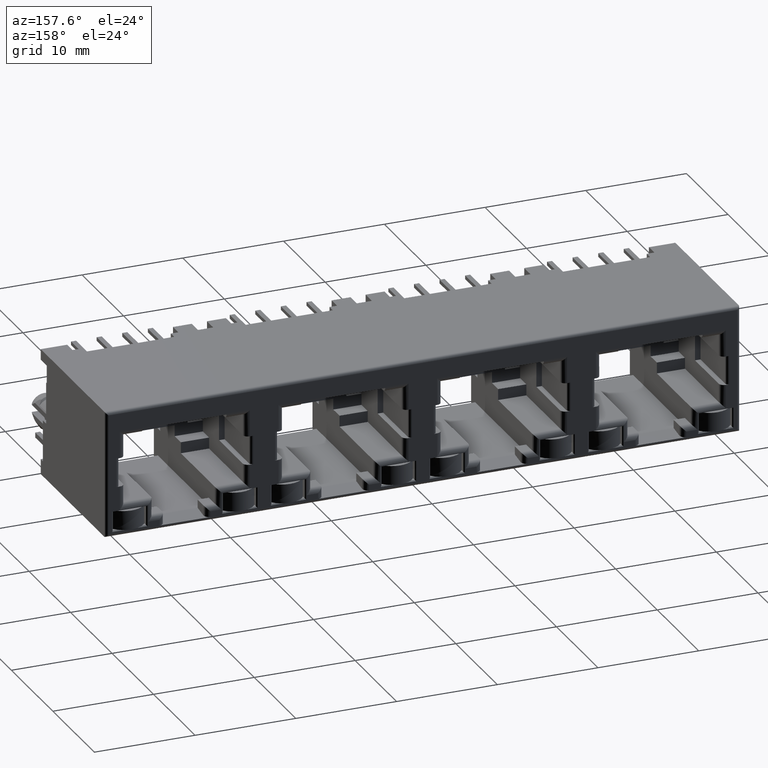
[diagram: clean part render]
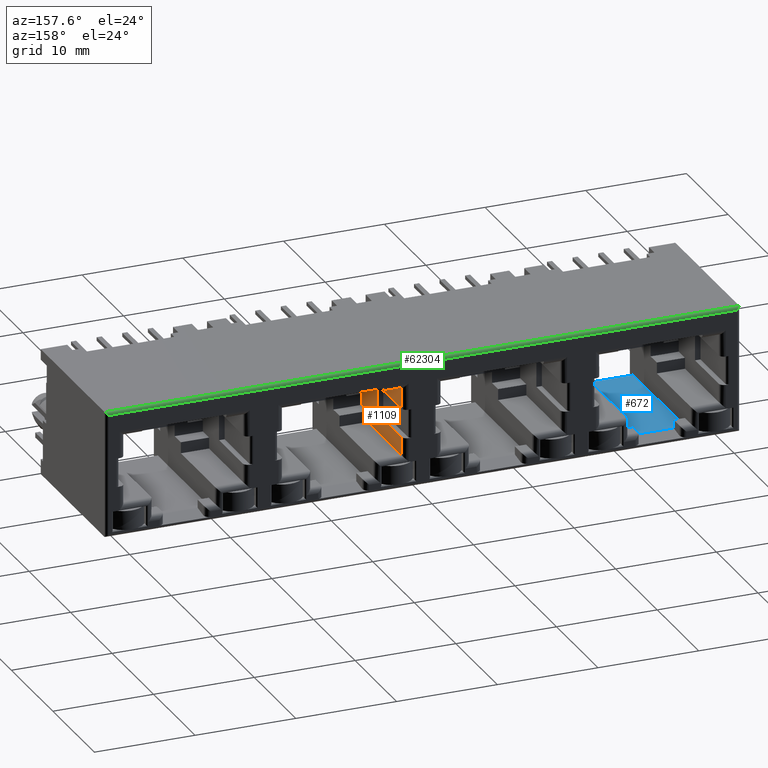
[diagram: same view with three faces highlighted in distinct colors, each labeled with its STEP entity id]
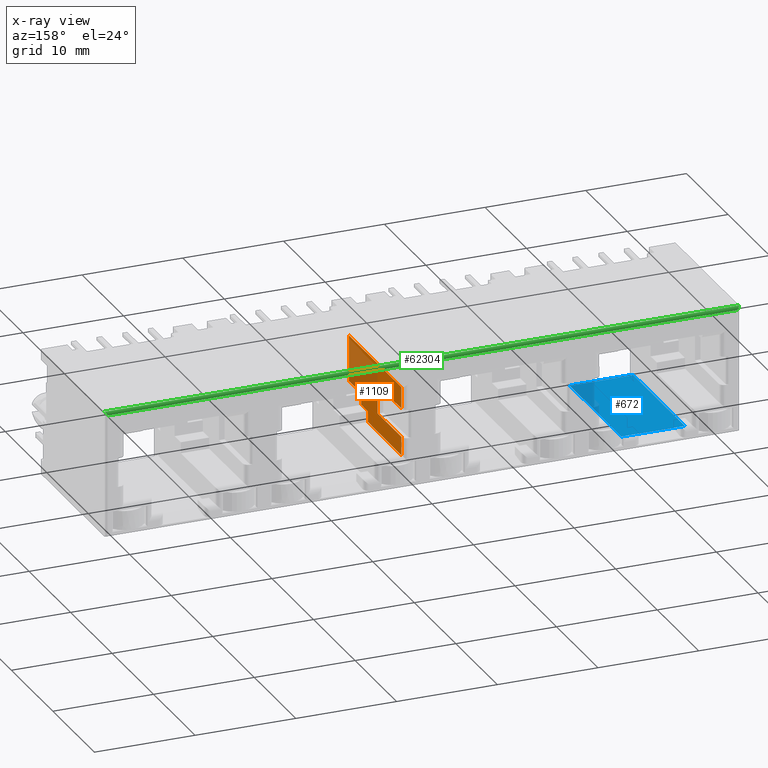
[diagram: x-ray of the same camera — body ghosted, the three highlighted faces saturated]
A machine part, auxiliary view with three faces highlighted in distinct colors.
The next image is the same camera in x-ray (body ghosted, the three faces saturated) — at least one of them is partly hidden behind the body in this view.
Their STEP definitions:

[orange] entity #1109 — the highlighted planar face has unit normal (1, 0, 0).
#118 = CARTESIAN_POINT ( 'NONE',  ( 1.924999999999999800, -0.8000000000000000400, -2.416666666666667000 ) ) ;
#132 = VERTEX_POINT ( 'NONE', #5470 ) ;
#186 = VERTEX_POINT ( 'NONE', #16344 ) ;
#1109 = ADVANCED_FACE ( 'NONE', ( #9403 ), #10837, .T. ) ;
#1944 = B_SPLINE_CURVE_WITH_KNOTS ( 'NONE', 3,
 ( #21942, #66260, #32847, #55367 ),
 .UNSPECIFIED., .F., .F.,
 ( 4, 4 ),
 ( 0.0000000000000000000, 1.000000000000000000 ),
 .UNSPECIFIED. ) ;
#2336 = ORIENTED_EDGE ( 'NONE', *, *, #15156, .F. ) ;
#2474 = CARTESIAN_POINT ( 'NONE',  ( 1.924999999999999800, 7.300000000000000700, -3.149999999999998600 ) ) ;
#2743 = B_SPLINE_CURVE_WITH_KNOTS ( 'NONE', 3,
 ( #20228, #25656, #25191, #19743 ),
 .UNSPECIFIED., .F., .F.,
 ( 4, 4 ),
 ( 0.0000000000000000000, 1.000000000000000000 ),
 .UNSPECIFIED. ) ;
#2765 = EDGE_CURVE ( 'NONE', #28005, #57842, #40429, .T. ) ;
#3300 = CARTESIAN_POINT ( 'NONE',  ( 1.924999999999999600, -2.299999999999998000, -2.049999999999999800 ) ) ;
#3739 = VERTEX_POINT ( 'NONE', #47440 ) ;
#5470 = CARTESIAN_POINT ( 'NONE',  ( 1.924999999999999800, -5.299999999999998900, -0.9199999999999999300 ) ) ;
#9403 = FACE_OUTER_BOUND ( 'NONE', #40724, .T. ) ;
#9407 = CARTESIAN_POINT ( 'NONE',  ( 1.924999999999999600, -2.299999999999998000, -2.049999999999999800 ) ) ;
#10660 = ORIENTED_EDGE ( 'NONE', *, *, #20006, .F. ) ;
#10837 = PLANE ( 'NONE',  #53367 ) ;
#11502 = CARTESIAN_POINT ( 'NONE',  ( 1.924999999999999800, -4.299999999999998000, -0.9199999999999999300 ) ) ;
#11594 = CARTESIAN_POINT ( 'NONE',  ( 1.925000000000000000, -0.7999999999999992700, -3.149999999999999500 ) ) ;
#11967 = CARTESIAN_POINT ( 'NONE',  ( 1.924999999999999600, -3.299999999999998500, -0.9199999999999999300 ) ) ;
#12295 = EDGE_CURVE ( 'NONE', #186, #26157, #48410, .T. ) ;
#13928 = EDGE_CURVE ( 'NONE', #29637, #28005, #57463, .T. ) ;
#15156 = EDGE_CURVE ( 'NONE', #26157, #33733, #69179, .T. ) ;
#15439 = CARTESIAN_POINT ( 'NONE',  ( 1.924999999999999800, 1.600000000000000100, -1.319999999999999600 ) ) ;
#15886 = CARTESIAN_POINT ( 'NONE',  ( 1.924999999999999600, 7.299999999999998900, 1.530000000000000000 ) ) ;
#16344 = CARTESIAN_POINT ( 'NONE',  ( 1.925000000000000000, -0.7999999999999992700, -2.049999999999999800 ) ) ;
#18341 = CARTESIAN_POINT ( 'NONE',  ( 1.924999999999999800, 5.400000000000000400, 1.530000000000000000 ) ) ;
#18706 = CARTESIAN_POINT ( 'NONE',  ( 1.924999999999999600, 7.299999999999998900, 1.530000000000000000 ) ) ;
#19743 = CARTESIAN_POINT ( 'NONE',  ( 1.924999999999999600, 7.299999999999999800, 3.680000000000000200 ) ) ;
#20006 = EDGE_CURVE ( 'NONE', #33733, #132, #68286, .T. ) ;
#20228 = CARTESIAN_POINT ( 'NONE',  ( 1.924999999999999600, -5.299999999999999800, 3.680000000000000200 ) ) ;
#20773 = CARTESIAN_POINT ( 'NONE',  ( 1.925000000000000000, -0.7999999999999992700, -3.149999999999999500 ) ) ;
#21034 = ORIENTED_EDGE ( 'NONE', *, *, #13928, .T. ) ;
#21213 = CARTESIAN_POINT ( 'NONE',  ( 1.924999999999999600, -5.299999999999999800, 3.680000000000000200 ) ) ;
#21483 = ORIENTED_EDGE ( 'NONE', *, *, #30984, .F. ) ;
#21942 = CARTESIAN_POINT ( 'NONE',  ( 1.925000000000000000, -0.7999999999999992700, -3.149999999999999500 ) ) ;
#22693 = EDGE_CURVE ( 'NONE', #67965, #186, #31266, .T. ) ;
#23045 = CARTESIAN_POINT ( 'NONE',  ( 1.924999999999999600, -2.299999999999999800, -1.296666666666666900 ) ) ;
#23367 = DIRECTION ( 'NONE',  ( 0.0000000000000000000, -1.000000000000000000, 0.0000000000000000000 ) ) ;
#23687 = CARTESIAN_POINT ( 'NONE',  ( 1.924999999999999800, 7.299999999999998900, 2.963333333333333400 ) ) ;
#23790 = CARTESIAN_POINT ( 'NONE',  ( 1.924999999999999600, 7.299999999999998900, 1.530000000000000000 ) ) ;
#24033 = CARTESIAN_POINT ( 'NONE',  ( 1.925000000000000000, 1.599999999999999400, 1.530000000000000500 ) ) ;
#24246 = CARTESIAN_POINT ( 'NONE',  ( 1.924999999999999800, 1.600000000000000100, 0.5799999999999999600 ) ) ;
#24481 = CARTESIAN_POINT ( 'NONE',  ( 1.924999999999999800, 1.600000000000000100, -0.3700000000000001100 ) ) ;
#25191 = CARTESIAN_POINT ( 'NONE',  ( 1.924999999999999800, 3.099999999999999600, 3.680000000000000200 ) ) ;
#25656 = CARTESIAN_POINT ( 'NONE',  ( 1.924999999999999800, -1.099999999999999400, 3.680000000000000200 ) ) ;
#25947 = CARTESIAN_POINT ( 'NONE',  ( 1.924999999999999800, -5.299999999999999800, 0.6133333333333329500 ) ) ;
#26157 = VERTEX_POINT ( 'NONE', #9407 ) ;
#27410 = CARTESIAN_POINT ( 'NONE',  ( 1.924999999999999800, 7.551999999999999600, 3.816599999999999300 ) ) ;
#28005 = VERTEX_POINT ( 'NONE', #29403 ) ;
#28779 = CARTESIAN_POINT ( 'NONE',  ( 1.924999999999999800, -5.299999999999998900, -0.9199999999999999300 ) ) ;
#29403 = CARTESIAN_POINT ( 'NONE',  ( 1.924999999999999600, 7.299999999999998900, -1.320000000000000100 ) ) ;
#29637 = VERTEX_POINT ( 'NONE', #63600 ) ;
#30059 = CARTESIAN_POINT ( 'NONE',  ( 1.925000000000000000, -0.7999999999999992700, -2.049999999999999800 ) ) ;
#30984 = EDGE_CURVE ( 'NONE', #64794, #57842, #45896, .T. ) ;
#31266 = B_SPLINE_CURVE_WITH_KNOTS ( 'NONE', 3,
 ( #20773, #64589, #118, #43028 ),
 .UNSPECIFIED., .F., .F.,
 ( 4, 4 ),
 ( 0.0000000000000000000, 1.000000000000000000 ),
 .UNSPECIFIED. ) ;
#31347 = VERTEX_POINT ( 'NONE', #44350 ) ;
#32847 = CARTESIAN_POINT ( 'NONE',  ( 1.924999999999999800, 4.599999999999999600, -3.150000000000000400 ) ) ;
#33025 = VERTEX_POINT ( 'NONE', #15886 ) ;
#33733 = VERTEX_POINT ( 'NONE', #42816 ) ;
#34266 = B_SPLINE_CURVE_WITH_KNOTS ( 'NONE', 3,
 ( #41601, #25947, #53724, #21213 ),
 .UNSPECIFIED., .F., .F.,
 ( 4, 4 ),
 ( 0.0000000000000000000, 1.000000000000000000 ),
 .UNSPECIFIED. ) ;
#34369 = CARTESIAN_POINT ( 'NONE',  ( 1.924999999999999800, 7.299999999999998900, 2.246666666666666600 ) ) ;
#37257 = CARTESIAN_POINT ( 'NONE',  ( 1.924999999999999800, 3.499999999999999600, -1.320000000000000500 ) ) ;
#39166 = CARTESIAN_POINT ( 'NONE',  ( 1.924999999999999600, -2.299999999999998900, -0.9199999999999996000 ) ) ;
#39179 = EDGE_CURVE ( 'NONE', #132, #3739, #34266, .T. ) ;
#39457 = CARTESIAN_POINT ( 'NONE',  ( 1.924999999999999600, -2.299999999999998900, -0.9199999999999996000 ) ) ;
#39691 = B_SPLINE_CURVE_WITH_KNOTS ( 'NONE', 3,
 ( #24033, #50142, #18341, #23790 ),
 .UNSPECIFIED., .F., .F.,
 ( 4, 4 ),
 ( 0.0000000000000000000, 1.000000000000000000 ),
 .UNSPECIFIED. ) ;
#40429 = B_SPLINE_CURVE_WITH_KNOTS ( 'NONE', 3,
 ( #69766, #42245, #37257, #15439 ),
 .UNSPECIFIED., .F., .F.,
 ( 4, 4 ),
 ( 0.0000000000000000000, 1.000000000000000000 ),
 .UNSPECIFIED. ) ;
#40592 = ORIENTED_EDGE ( 'NONE', *, *, #22693, .F. ) ;
#40724 = EDGE_LOOP ( 'NONE', ( #40592, #63503, #21034, #48063, #21483, #64727, #50151, #46506, #44011, #10660, #2336, #53679 ) ) ;
#41601 = CARTESIAN_POINT ( 'NONE',  ( 1.924999999999999800, -5.299999999999998900, -0.9199999999999999300 ) ) ;
#42245 = CARTESIAN_POINT ( 'NONE',  ( 1.924999999999999800, 5.399999999999999500, -1.320000000000000500 ) ) ;
#42816 = CARTESIAN_POINT ( 'NONE',  ( 1.924999999999999600, -2.299999999999998900, -0.9199999999999996000 ) ) ;
#43028 = CARTESIAN_POINT ( 'NONE',  ( 1.925000000000000000, -0.7999999999999992700, -2.049999999999999800 ) ) ;
#43824 = B_SPLINE_CURVE_WITH_KNOTS ( 'NONE', 3,
 ( #18706, #34369, #23687, #61388 ),
 .UNSPECIFIED., .F., .F.,
 ( 4, 4 ),
 ( 0.0000000000000000000, 1.000000000000000000 ),
 .UNSPECIFIED. ) ;
#44011 = ORIENTED_EDGE ( 'NONE', *, *, #39179, .F. ) ;
#44064 = EDGE_CURVE ( 'NONE', #33025, #31347, #43824, .T. ) ;
#44350 = CARTESIAN_POINT ( 'NONE',  ( 1.924999999999999600, 7.299999999999999800, 3.680000000000000200 ) ) ;
#44864 = CARTESIAN_POINT ( 'NONE',  ( 1.924999999999999600, -2.299999999999998000, -2.049999999999999800 ) ) ;
#45823 = CARTESIAN_POINT ( 'NONE',  ( 1.924999999999999600, 7.299999999999998900, -1.320000000000000100 ) ) ;
#45896 = B_SPLINE_CURVE_WITH_KNOTS ( 'NONE', 3,
 ( #51299, #24246, #24481, #62403 ),
 .UNSPECIFIED., .F., .F.,
 ( 4, 4 ),
 ( 0.0000000000000000000, 1.000000000000000000 ),
 .UNSPECIFIED. ) ;
#46506 = ORIENTED_EDGE ( 'NONE', *, *, #54706, .F. ) ;
#46660 = CARTESIAN_POINT ( 'NONE',  ( 1.924999999999999800, -1.300000000000000300, -2.049999999999999800 ) ) ;
#47440 = CARTESIAN_POINT ( 'NONE',  ( 1.924999999999999600, -5.299999999999999800, 3.680000000000000200 ) ) ;
#48063 = ORIENTED_EDGE ( 'NONE', *, *, #2765, .T. ) ;
#48410 = B_SPLINE_CURVE_WITH_KNOTS ( 'NONE', 3,
 ( #30059, #46660, #51889, #3300 ),
 .UNSPECIFIED., .F., .F.,
 ( 4, 4 ),
 ( 0.0000000000000000000, 1.000000000000000000 ),
 .UNSPECIFIED. ) ;
#50142 = CARTESIAN_POINT ( 'NONE',  ( 1.924999999999999800, 3.499999999999999600, 1.530000000000000000 ) ) ;
#50151 = ORIENTED_EDGE ( 'NONE', *, *, #44064, .T. ) ;
#51299 = CARTESIAN_POINT ( 'NONE',  ( 1.925000000000000000, 1.599999999999999400, 1.530000000000000500 ) ) ;
#51889 = CARTESIAN_POINT ( 'NONE',  ( 1.924999999999999800, -1.800000000000000300, -2.049999999999999800 ) ) ;
#52214 = EDGE_CURVE ( 'NONE', #67965, #29637, #1944, .T. ) ;
#52392 = EDGE_CURVE ( 'NONE', #64794, #33025, #39691, .T. ) ;
#53367 = AXIS2_PLACEMENT_3D ( 'NONE', #27410, #54245, #23367 ) ;
#53679 = ORIENTED_EDGE ( 'NONE', *, *, #12295, .F. ) ;
#53724 = CARTESIAN_POINT ( 'NONE',  ( 1.924999999999999600, -5.299999999999999800, 2.146666666666666900 ) ) ;
#54245 = DIRECTION ( 'NONE',  ( 1.000000000000000000, 0.0000000000000000000, 0.0000000000000000000 ) ) ;
#54706 = EDGE_CURVE ( 'NONE', #3739, #31347, #2743, .T. ) ;
#55326 = CARTESIAN_POINT ( 'NONE',  ( 1.924999999999999600, -2.299999999999999800, -1.673333333333333600 ) ) ;
#55367 = CARTESIAN_POINT ( 'NONE',  ( 1.924999999999999800, 7.300000000000000700, -3.149999999999998600 ) ) ;
#56494 = CARTESIAN_POINT ( 'NONE',  ( 1.924999999999999800, 7.299999999999998900, -2.539999999999999600 ) ) ;
#56972 = CARTESIAN_POINT ( 'NONE',  ( 1.924999999999999800, 7.299999999999998900, -1.930000000000000200 ) ) ;
#57311 = CARTESIAN_POINT ( 'NONE',  ( 1.924999999999999800, 1.600000000000000100, -1.319999999999999600 ) ) ;
#57463 = B_SPLINE_CURVE_WITH_KNOTS ( 'NONE', 3,
 ( #2474, #56494, #56972, #45823 ),
 .UNSPECIFIED., .F., .F.,
 ( 4, 4 ),
 ( 0.0000000000000000000, 1.000000000000000000 ),
 .UNSPECIFIED. ) ;
#57842 = VERTEX_POINT ( 'NONE', #57311 ) ;
#61388 = CARTESIAN_POINT ( 'NONE',  ( 1.924999999999999600, 7.299999999999999800, 3.680000000000000200 ) ) ;
#62403 = CARTESIAN_POINT ( 'NONE',  ( 1.924999999999999800, 1.600000000000000100, -1.319999999999999600 ) ) ;
#62691 = CARTESIAN_POINT ( 'NONE',  ( 1.925000000000000000, 1.599999999999999400, 1.530000000000000500 ) ) ;
#63503 = ORIENTED_EDGE ( 'NONE', *, *, #52214, .T. ) ;
#63600 = CARTESIAN_POINT ( 'NONE',  ( 1.924999999999999800, 7.300000000000000700, -3.149999999999998600 ) ) ;
#64589 = CARTESIAN_POINT ( 'NONE',  ( 1.924999999999999800, -0.8000000000000000400, -2.783333333333333700 ) ) ;
#64727 = ORIENTED_EDGE ( 'NONE', *, *, #52392, .T. ) ;
#64794 = VERTEX_POINT ( 'NONE', #62691 ) ;
#66260 = CARTESIAN_POINT ( 'NONE',  ( 1.924999999999999800, 1.899999999999999200, -3.150000000000000400 ) ) ;
#67965 = VERTEX_POINT ( 'NONE', #11594 ) ;
#68286 = B_SPLINE_CURVE_WITH_KNOTS ( 'NONE', 3,
 ( #39457, #11967, #11502, #28779 ),
 .UNSPECIFIED., .F., .F.,
 ( 4, 4 ),
 ( 0.0000000000000000000, 1.000000000000000000 ),
 .UNSPECIFIED. ) ;
#69179 = B_SPLINE_CURVE_WITH_KNOTS ( 'NONE', 3,
 ( #44864, #55326, #23045, #39166 ),
 .UNSPECIFIED., .F., .F.,
 ( 4, 4 ),
 ( 0.0000000000000000000, 1.000000000000000000 ),
 .UNSPECIFIED. ) ;
#69766 = CARTESIAN_POINT ( 'NONE',  ( 1.924999999999999600, 7.299999999999998900, -1.320000000000000100 ) ) ;

[blue] entity #672 — the highlighted planar face has unit normal (0, 0, 1).
#393 = CARTESIAN_POINT ( 'NONE',  ( -22.94833333333333100, 5.950000000000047300, -5.649999999999999500 ) ) ;
#672 = ADVANCED_FACE ( 'NONE', ( #5202 ), #53299, .T. ) ;
#856 = CARTESIAN_POINT ( 'NONE',  ( -21.59499999999999500, 5.950000000000000200, -5.649999999999999500 ) ) ;
#861 = CARTESIAN_POINT ( 'NONE',  ( -25.65500000000000100, 5.950000000000000200, -5.649999999999998600 ) ) ;
#1619 = CARTESIAN_POINT ( 'NONE',  ( -21.59499999999999500, 5.950000000000000200, -5.649999999999999500 ) ) ;
#1837 = EDGE_CURVE ( 'NONE', #68036, #52543, #56598, .T. ) ;
#3547 = ORIENTED_EDGE ( 'NONE', *, *, #59682, .F. ) ;
#3954 = ORIENTED_EDGE ( 'NONE', *, *, #26416, .T. ) ;
#5202 = FACE_OUTER_BOUND ( 'NONE', #69973, .T. ) ;
#5254 = CARTESIAN_POINT ( 'NONE',  ( -26.77500000000000200, 5.950000000000000200, -5.649999999999998600 ) ) ;
#6876 = VERTEX_POINT ( 'NONE', #8512 ) ;
#7191 = CARTESIAN_POINT ( 'NONE',  ( -26.77500000000000200, 5.950000000000000200, -5.649999999999998600 ) ) ;
#8512 = CARTESIAN_POINT ( 'NONE',  ( -25.65500000000000100, 5.950000000000000200, -5.649999999999998600 ) ) ;
#15637 = VERTEX_POINT ( 'NONE', #5254 ) ;
#16937 = CARTESIAN_POINT ( 'NONE',  ( -21.59499999999999500, 5.950000000000000200, -5.649999999999999500 ) ) ;
#19413 = CARTESIAN_POINT ( 'NONE',  ( -24.67500000000000400, -6.500000000000000900, -5.649999999999999500 ) ) ;
#19663 = CARTESIAN_POINT ( 'NONE',  ( -22.57500000000000300, -6.500000000000000900, -5.649999999999999500 ) ) ;
#19908 = CARTESIAN_POINT ( 'NONE',  ( -20.47500000000000100, -6.499999999999999100, -5.649999999999999500 ) ) ;
#21403 = CARTESIAN_POINT ( 'NONE',  ( -26.77500000000000200, -6.500000000000000900, -5.649999999999998600 ) ) ;
#23044 = CARTESIAN_POINT ( 'NONE',  ( -26.77500000000000200, 1.800000000000000500, -5.649999999999999500 ) ) ;
#23295 = ORIENTED_EDGE ( 'NONE', *, *, #57587, .F. ) ;
#24407 = CARTESIAN_POINT ( 'NONE',  ( -26.77500000000000200, -6.500000000000000900, -5.649999999999998600 ) ) ;
#24763 = CARTESIAN_POINT ( 'NONE',  ( -25.65500000000000100, 5.950000000000000200, -5.649999999999998600 ) ) ;
#25007 = CARTESIAN_POINT ( 'NONE',  ( -26.77500000000000200, 5.950000000000000200, -5.649999999999998600 ) ) ;
#25951 = B_SPLINE_CURVE_WITH_KNOTS ( 'NONE', 3,
 ( #16937, #393, #60114, #861 ),
 .UNSPECIFIED., .F., .F.,
 ( 4, 4 ),
 ( 0.0000000000000000000, 1.000000000000000000 ),
 .UNSPECIFIED. ) ;
#25994 = CARTESIAN_POINT ( 'NONE',  ( -20.34900000000000000, -6.749000000000000600, -5.649999999999999500 ) ) ;
#26294 = CARTESIAN_POINT ( 'NONE',  ( -20.47500000000000100, -6.499999999999999100, -5.649999999999999500 ) ) ;
#26416 = EDGE_CURVE ( 'NONE', #33900, #6876, #25951, .T. ) ;
#26849 = VERTEX_POINT ( 'NONE', #21403 ) ;
#28377 = CARTESIAN_POINT ( 'NONE',  ( -20.84833333333333300, 5.950000000000000200, -5.649999999999999500 ) ) ;
#28627 = B_SPLINE_CURVE_WITH_KNOTS ( 'NONE', 3,
 ( #7191, #23044, #50083, #39855 ),
 .UNSPECIFIED., .F., .F.,
 ( 4, 4 ),
 ( 0.0000000000000000000, 1.000000000000000000 ),
 .UNSPECIFIED. ) ;
#30232 = B_SPLINE_CURVE_WITH_KNOTS ( 'NONE', 3,
 ( #24407, #19413, #19663, #19908 ),
 .UNSPECIFIED., .F., .F.,
 ( 4, 4 ),
 ( 0.0000000000000000000, 1.000000000000000000 ),
 .UNSPECIFIED. ) ;
#33618 = CARTESIAN_POINT ( 'NONE',  ( -21.22166666666666400, 5.950000000000000200, -5.649999999999999500 ) ) ;
#33900 = VERTEX_POINT ( 'NONE', #856 ) ;
#34885 = B_SPLINE_CURVE_WITH_KNOTS ( 'NONE', 3,
 ( #1619, #33618, #28377, #55677 ),
 .UNSPECIFIED., .F., .F.,
 ( 4, 4 ),
 ( 0.0000000000000000000, 1.000000000000000000 ),
 .UNSPECIFIED. ) ;
#35821 = CARTESIAN_POINT ( 'NONE',  ( -20.47500000000000100, -6.499999999999999100, -5.649999999999999500 ) ) ;
#37993 = ORIENTED_EDGE ( 'NONE', *, *, #47842, .T. ) ;
#39855 = CARTESIAN_POINT ( 'NONE',  ( -26.77500000000000200, -6.500000000000000900, -5.649999999999998600 ) ) ;
#42615 = EDGE_CURVE ( 'NONE', #15637, #26849, #28627, .T. ) ;
#45641 = ORIENTED_EDGE ( 'NONE', *, *, #1837, .T. ) ;
#45903 = CARTESIAN_POINT ( 'NONE',  ( -26.02833333333333200, 5.950000000000000200, -5.649999999999999500 ) ) ;
#46069 = CARTESIAN_POINT ( 'NONE',  ( -20.47500000000000100, -2.349999999999999600, -5.649999999999999500 ) ) ;
#47842 = EDGE_CURVE ( 'NONE', #26849, #68036, #30232, .T. ) ;
#49718 = AXIS2_PLACEMENT_3D ( 'NONE', #25994, #58990, #58759 ) ;
#50083 = CARTESIAN_POINT ( 'NONE',  ( -26.77500000000000200, -2.349999999999999600, -5.649999999999999500 ) ) ;
#52543 = VERTEX_POINT ( 'NONE', #62900 ) ;
#53169 = CARTESIAN_POINT ( 'NONE',  ( -20.47500000000000100, 5.950000000000000200, -5.649999999999999500 ) ) ;
#53299 = PLANE ( 'NONE',  #49718 ) ;
#55677 = CARTESIAN_POINT ( 'NONE',  ( -20.47500000000000100, 5.950000000000000200, -5.649999999999999500 ) ) ;
#56598 = B_SPLINE_CURVE_WITH_KNOTS ( 'NONE', 3,
 ( #35821, #46069, #68087, #53169 ),
 .UNSPECIFIED., .F., .F.,
 ( 4, 4 ),
 ( 0.0000000000000000000, 1.000000000000000000 ),
 .UNSPECIFIED. ) ;
#57269 = CARTESIAN_POINT ( 'NONE',  ( -26.40166666666667100, 5.950000000000000200, -5.649999999999999500 ) ) ;
#57587 = EDGE_CURVE ( 'NONE', #33900, #52543, #34885, .T. ) ;
#58759 = DIRECTION ( 'NONE',  ( 0.0000000000000000000, 1.000000000000000000, 0.0000000000000000000 ) ) ;
#58990 = DIRECTION ( 'NONE',  ( 0.0000000000000000000, -0.0000000000000000000, 1.000000000000000000 ) ) ;
#59682 = EDGE_CURVE ( 'NONE', #15637, #6876, #69184, .T. ) ;
#60114 = CARTESIAN_POINT ( 'NONE',  ( -24.30166666666666900, 5.950000000000047300, -5.649999999999999500 ) ) ;
#62900 = CARTESIAN_POINT ( 'NONE',  ( -20.47500000000000100, 5.950000000000000200, -5.649999999999999500 ) ) ;
#68036 = VERTEX_POINT ( 'NONE', #26294 ) ;
#68087 = CARTESIAN_POINT ( 'NONE',  ( -20.47500000000000100, 1.800000000000002000, -5.649999999999999500 ) ) ;
#69184 = B_SPLINE_CURVE_WITH_KNOTS ( 'NONE', 3,
 ( #25007, #57269, #45903, #24763 ),
 .UNSPECIFIED., .F., .F.,
 ( 4, 4 ),
 ( 0.0000000000000000000, 1.000000000000000000 ),
 .UNSPECIFIED. ) ;
#69518 = ORIENTED_EDGE ( 'NONE', *, *, #42615, .T. ) ;
#69973 = EDGE_LOOP ( 'NONE', ( #23295, #3954, #3547, #69518, #37993, #45641 ) ) ;

[green] entity #62304 — the highlighted cylindrical surface (edge-blend (fillet) strip) has radius 0.3 mm, axis along (1, 0, 0).
#1495 = EDGE_LOOP ( 'NONE', ( #17735, #19532, #33215, #5685 ) ) ;
#1815 = CARTESIAN_POINT ( 'NONE',  ( 31.41181465492164900, 7.712480027773541900, 6.211805759054059600 ) ) ;
#3436 = B_SPLINE_CURVE_WITH_KNOTS ( 'NONE', 3,
 ( #59676, #27154, #11051, #27390, #65331, #27624, #18150, #22651, #60610, #1815, #6320, #38779, #44711, #28791 ),
 .UNSPECIFIED., .F., .F.,
 ( 4, 2, 2, 2, 2, 2, 4 ),
 ( 0.0000000000000000000, 0.2499999999999448800, 0.3749999999999179500, 0.4374999999999151800, 0.4687499999999137900, 0.4999999999999124000, 1.000000000000000000 ),
 .UNSPECIFIED. ) ;
#5685 = ORIENTED_EDGE ( 'NONE', *, *, #64640, .F. ) ;
#6320 = CARTESIAN_POINT ( 'NONE',  ( 31.41320328950843100, 7.711115056546005600, 6.213215516256465100 ) ) ;
#7164 = CARTESIAN_POINT ( 'NONE',  ( -31.20000000000000600, 7.800000000000000700, 6.000000000000000000 ) ) ;
#9367 = EDGE_CURVE ( 'NONE', #53388, #16505, #64501, .T. ) ;
#10052 = CARTESIAN_POINT ( 'NONE',  ( -31.50000000000000000, 7.500000000000000000, 6.299999999999999800 ) ) ;
#10285 = CARTESIAN_POINT ( 'NONE',  ( -31.47264738668099300, 7.626595346158207000, 6.272344131344152800 ) ) ;
#11051 = CARTESIAN_POINT ( 'NONE',  ( 31.29930597744770500, 7.785948710067169800, 6.097916608648438000 ) ) ;
#11363 = EDGE_CURVE ( 'NONE', #54307, #52838, #70153, .T. ) ;
#11438 = CARTESIAN_POINT ( 'NONE',  ( 31.20000000000000600, 7.799999999999999800, 6.000000000000000000 ) ) ;
#15715 = CARTESIAN_POINT ( 'NONE',  ( -31.44827425821028300, 7.668687129847222100, 6.248145246270284200 ) ) ;
#16505 = VERTEX_POINT ( 'NONE', #11438 ) ;
#17735 = ORIENTED_EDGE ( 'NONE', *, *, #9367, .F. ) ;
#18150 = CARTESIAN_POINT ( 'NONE',  ( 31.39533972590843200, 7.727818457187678000, 6.195021712443754300 ) ) ;
#18555 = CARTESIAN_POINT ( 'NONE',  ( -31.50000000000000000, 7.500000000000000000, 6.299999999999999800 ) ) ;
#19532 = ORIENTED_EDGE ( 'NONE', *, *, #59958, .F. ) ;
#21143 = FACE_OUTER_BOUND ( 'NONE', #1495, .T. ) ;
#21195 = CARTESIAN_POINT ( 'NONE',  ( -31.37162124110134800, 7.749361590918365300, 6.170420319536033200 ) ) ;
#21439 = CARTESIAN_POINT ( 'NONE',  ( -31.39800264140451300, 7.727054334826066300, 6.198015032925531500 ) ) ;
#22651 = CARTESIAN_POINT ( 'NONE',  ( 31.40388151312837600, 7.720106890152987200, 6.203748210272948400 ) ) ;
#26549 = CARTESIAN_POINT ( 'NONE',  ( 10.40000000000000600, 7.799999999999999800, 6.000000000000000000 ) ) ;
#27074 = CARTESIAN_POINT ( 'NONE',  ( -31.25332677024031400, 7.799999999999996300, 6.053326770237230600 ) ) ;
#27154 = CARTESIAN_POINT ( 'NONE',  ( 31.25323957823194500, 7.800000000000000700, 6.053239578231949000 ) ) ;
#27314 = CARTESIAN_POINT ( 'NONE',  ( -31.29947526774536100, 7.785901599382546200, 6.098076188191884100 ) ) ;
#27390 = CARTESIAN_POINT ( 'NONE',  ( 31.35332755376254400, 7.758645987294748600, 6.152088332549989300 ) ) ;
#27453 = DIRECTION ( 'NONE',  ( 0.0000000000000000000, 0.0000000000000000000, -1.000000000000000000 ) ) ;
#27624 = CARTESIAN_POINT ( 'NONE',  ( 31.38914850680926700, 7.733012247247187600, 6.188668887985827800 ) ) ;
#28791 = CARTESIAN_POINT ( 'NONE',  ( 31.50000000000000000, 7.500000000000000000, 6.299999999999999800 ) ) ;
#31869 = CARTESIAN_POINT ( 'NONE',  ( -31.46394858554807400, 7.643919993229065600, 6.263701672389198700 ) ) ;
#33215 = ORIENTED_EDGE ( 'NONE', *, *, #11363, .T. ) ;
#33634 = DIRECTION ( 'NONE',  ( 1.000000000000000000, 0.0000000000000000000, 0.0000000000000000000 ) ) ;
#33927 = CARTESIAN_POINT ( 'NONE',  ( 31.50000000000000000, 7.500000000000000000, 6.299999999999999800 ) ) ;
#37769 = CARTESIAN_POINT ( 'NONE',  ( -31.43978249206968200, 7.680765248291165500, 6.239718848789206800 ) ) ;
#38779 = CARTESIAN_POINT ( 'NONE',  ( 31.47223785831331700, 7.649466539587143300, 6.272228965202070400 ) ) ;
#39738 = CYLINDRICAL_SURFACE ( 'NONE', #68487, 0.2999999999999999300 ) ;
#43158 = CARTESIAN_POINT ( 'NONE',  ( -10.40000000000000000, 7.799999999999999800, 6.000000000000000000 ) ) ;
#44711 = CARTESIAN_POINT ( 'NONE',  ( 31.50000000000000000, 7.572413477418697500, 6.299999999999999800 ) ) ;
#48723 = CARTESIAN_POINT ( 'NONE',  ( -31.49999999999998600, 7.536151180754712800, 6.300000000000002500 ) ) ;
#52686 = CARTESIAN_POINT ( 'NONE',  ( -10.50000000000000200, 7.499999999999999100, 6.299999999999999800 ) ) ;
#52838 = VERTEX_POINT ( 'NONE', #33927 ) ;
#52919 = CARTESIAN_POINT ( 'NONE',  ( -31.50000000000000000, 7.500000000000000000, 6.299999999999999800 ) ) ;
#53388 = VERTEX_POINT ( 'NONE', #7164 ) ;
#53704 = CARTESIAN_POINT ( 'NONE',  ( -31.41939756684283200, 7.704637637339855500, 6.219409564170821800 ) ) ;
#54307 = VERTEX_POINT ( 'NONE', #18555 ) ;
#59074 = CARTESIAN_POINT ( 'NONE',  ( -31.20000000000000600, 7.800000000000000700, 6.000000000000000000 ) ) ;
#59600 = CARTESIAN_POINT ( 'NONE',  ( -31.20000000000000600, 7.800000000000000700, 6.000000000000000000 ) ) ;
#59627 = B_SPLINE_CURVE_WITH_KNOTS ( 'NONE', 3,
 ( #10052, #48723, #64564, #10285, #31869, #15715, #37769, #69815, #70271, #53704, #21439, #21195, #27314, #27074, #59600 ),
 .UNSPECIFIED., .F., .F.,
 ( 4, 2, 2, 1, 2, 2, 2, 4 ),
 ( 0.0000000000000000000, 0.2500000000000456900, 0.3750000000000676100, 0.4375000000000786000, 0.4687500000000935400, 0.5000000000001084700, 0.7500000000000541800, 1.000000000000000000 ),
 .UNSPECIFIED. ) ;
#59676 = CARTESIAN_POINT ( 'NONE',  ( 31.20000000000000600, 7.799999999999999800, 6.000000000000000000 ) ) ;
#59958 = EDGE_CURVE ( 'NONE', #54307, #53388, #59627, .T. ) ;
#60610 = CARTESIAN_POINT ( 'NONE',  ( 31.40660472100647400, 7.717549303607382800, 6.206523253073061900 ) ) ;
#60667 = CARTESIAN_POINT ( 'NONE',  ( -31.87800000000000400, 7.500000000000000000, 6.000000000000000000 ) ) ;
#62304 = ADVANCED_FACE ( 'NONE', ( #21143 ), #39738, .T. ) ;
#63312 = CARTESIAN_POINT ( 'NONE',  ( 10.50000000000000200, 7.499999999999999100, 6.299999999999999800 ) ) ;
#64031 = CARTESIAN_POINT ( 'NONE',  ( 31.50000000000000000, 7.500000000000000000, 6.299999999999999800 ) ) ;
#64481 = CARTESIAN_POINT ( 'NONE',  ( 31.20000000000000600, 7.799999999999999800, 6.000000000000000000 ) ) ;
#64501 = B_SPLINE_CURVE_WITH_KNOTS ( 'NONE', 3,
 ( #59074, #43158, #26549, #64481 ),
 .UNSPECIFIED., .F., .F.,
 ( 4, 4 ),
 ( 0.0000000000000000000, 1.000000000000000000 ),
 .UNSPECIFIED. ) ;
#64564 = CARTESIAN_POINT ( 'NONE',  ( -31.49338387020463200, 7.573333629634093200, 6.293086032836035800 ) ) ;
#64640 = EDGE_CURVE ( 'NONE', #16505, #52838, #3436, .T. ) ;
#65331 = CARTESIAN_POINT ( 'NONE',  ( 31.36895832398071300, 7.748476447050955500, 6.168004936896644500 ) ) ;
#68487 = AXIS2_PLACEMENT_3D ( 'NONE', #60667, #33634, #27453 ) ;
#69815 = CARTESIAN_POINT ( 'NONE',  ( -31.43033732893649900, 7.692274494915460900, 6.230320174675696000 ) ) ;
#70153 = B_SPLINE_CURVE_WITH_KNOTS ( 'NONE', 3,
 ( #52919, #52686, #63312, #64031 ),
 .UNSPECIFIED., .F., .F.,
 ( 4, 4 ),
 ( 0.0000000000000000000, 1.000000000000000000 ),
 .UNSPECIFIED. ) ;
#70271 = CARTESIAN_POINT ( 'NONE',  ( -31.42383320034569000, 7.699808570686052200, 6.223838330459480900 ) ) ;